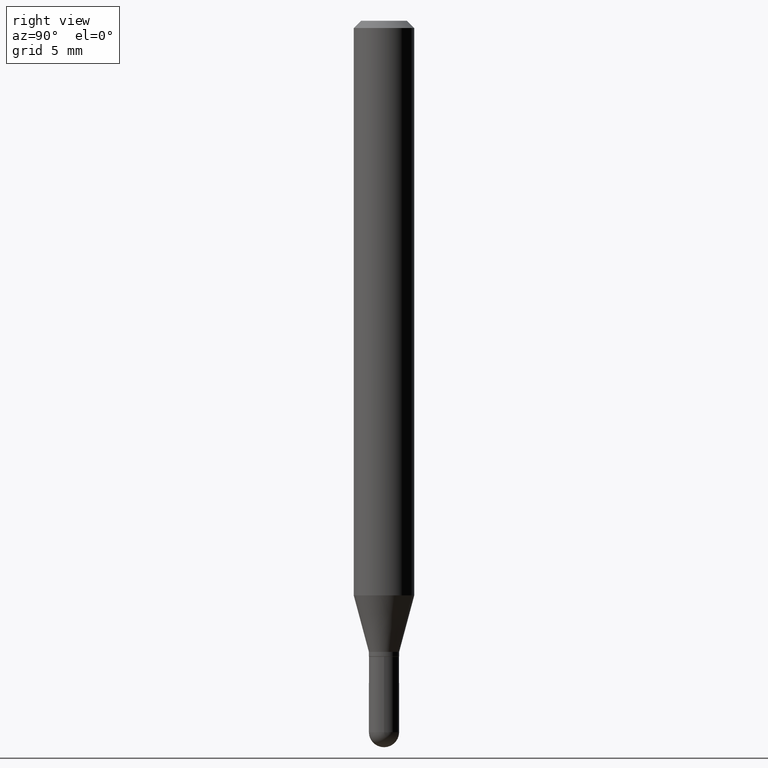
[diagram: clean part render]
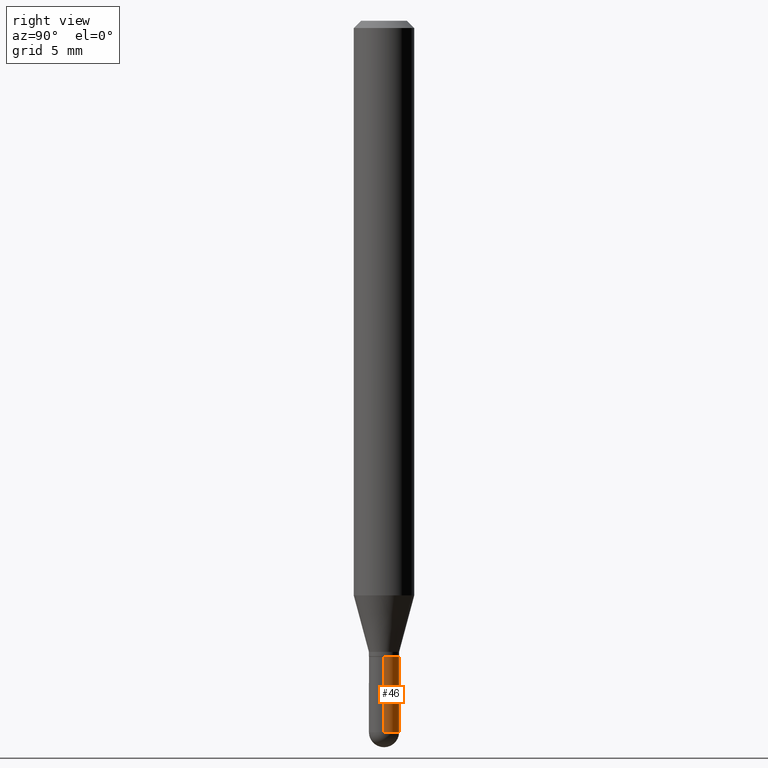
[diagram: same view with one face highlighted and labeled with its STEP entity id]
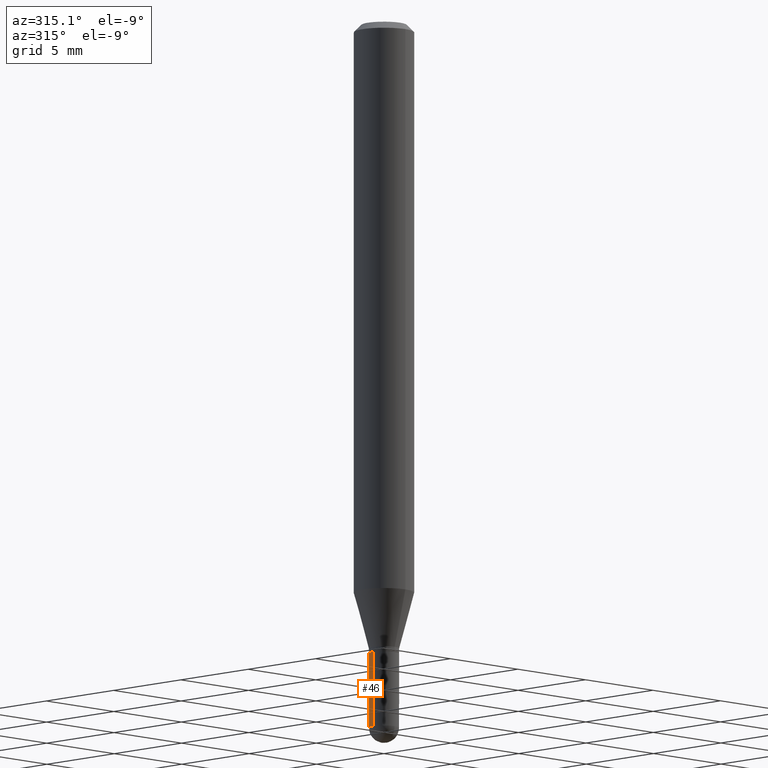
[diagram: same view with one face highlighted and labeled with its STEP entity id]
A machine part, right view. The second image highlights one B-rep face of the part: STEP entity #46.
A second angle (auxiliary view) of the same face is appended — the face is thin or edge-on in the first view.
In plain terms, the highlighted cylindrical surface (edge-blend (fillet) strip) has radius 0.7937 mm, axis along (-0, 0, 1).
Its self-contained STEP definition (entity closure, byte-faithful):
#5 = ORIENTED_EDGE ( 'NONE', *, *, #396, .F. ) ;
#27 = AXIS2_PLACEMENT_3D ( 'NONE', #433, #273, #239 ) ;
#28 = DIRECTION ( 'NONE',  ( -2.445468806185136597E-29, 3.491481338843145583E-15, 1.000000000000000000 ) ) ;
#42 = FACE_OUTER_BOUND ( 'NONE', #491, .T. ) ;
#45 = ORIENTED_EDGE ( 'NONE', *, *, #298, .F. ) ;
#46 = ADVANCED_FACE ( 'NONE', ( #42 ), #309, .T. ) ;
#55 = EDGE_CURVE ( 'NONE', #347, #245, #131, .T. ) ;
#58 = CARTESIAN_POINT ( 'NONE',  ( 3.591782309084418816E-29, -5.128113216425869865E-15, -1.468750000000000000 ) ) ;
#59 = VECTOR ( 'NONE', #120, 39.37007874015748143 ) ;
#63 = DIRECTION ( 'NONE',  ( 1.000000000000000000, -6.982962677686266711E-15, 4.876176775795935793E-29 ) ) ;
#96 = DIRECTION ( 'NONE',  ( -2.445468806185136877E-29, 3.491481338843145188E-15, 1.000000000000000000 ) ) ;
#120 = DIRECTION ( 'NONE',  ( -2.445468806185136877E-29, 3.491481338843145188E-15, 1.000000000000000000 ) ) ;
#131 = CIRCLE ( 'NONE', #379, 0.03125000000000000694 ) ;
#132 = LINE ( 'NONE', #445, #398 ) ;
#135 = CARTESIAN_POINT ( 'NONE',  ( 0.03125000000000000694, -5.074431690841155672E-15, -1.468750000000000000 ) ) ;
#144 = ORIENTED_EDGE ( 'NONE', *, *, #224, .T. ) ;
#166 = CARTESIAN_POINT ( 'NONE',  ( -0.03125000000000000000, 2.220446049250313081E-16, -1.537167215704658057E-30 ) ) ;
#184 = AXIS2_PLACEMENT_3D ( 'NONE', #263, #28, #63 ) ;
#197 = DIRECTION ( 'NONE',  ( 1.000000000000000000, -6.982962677686261189E-15, 0.000000000000000000 ) ) ;
#205 = CARTESIAN_POINT ( 'NONE',  ( 3.591782309084418816E-29, -5.128113216425869865E-15, -1.468750000000000000 ) ) ;
#219 = ORIENTED_EDGE ( 'NONE', *, *, #391, .T. ) ;
#224 = EDGE_CURVE ( 'NONE', #287, #347, #332, .T. ) ;
#239 = DIRECTION ( 'NONE',  ( 1.000000000000000000, -6.982962677686262766E-15, 0.000000000000000000 ) ) ;
#245 = VERTEX_POINT ( 'NONE', #355 ) ;
#249 = CIRCLE ( 'NONE', #27, 0.03125000000000000000 ) ;
#263 = CARTESIAN_POINT ( 'NONE',  ( 0.000000000000000000, 0.000000000000000000, 0.000000000000000000 ) ) ;
#270 = AXIS2_PLACEMENT_3D ( 'NONE', #58, #375, #278 ) ;
#273 = DIRECTION ( 'NONE',  ( -2.445468806185136597E-29, 3.491481338843145583E-15, 1.000000000000000000 ) ) ;
#278 = DIRECTION ( 'NONE',  ( 1.000000000000000000, -6.982962677686261189E-15, 0.000000000000000000 ) ) ;
#287 = VERTEX_POINT ( 'NONE', #135 ) ;
#298 = EDGE_CURVE ( 'NONE', #287, #412, #132, .T. ) ;
#309 = CYLINDRICAL_SURFACE ( 'NONE', #184, 0.03125000000000000000 ) ;
#332 = CIRCLE ( 'NONE', #270, 0.03125000000000000694 ) ;
#345 = CARTESIAN_POINT ( 'NONE',  ( 0.03125000000000000000, -4.802532581578746433E-15, -1.313000000000000167 ) ) ;
#347 = VERTEX_POINT ( 'NONE', #454 ) ;
#355 = CARTESIAN_POINT ( 'NONE',  ( -0.03125000000000000694, -4.634169502238429318E-15, -1.468750000000000000 ) ) ;
#370 = ORIENTED_EDGE ( 'NONE', *, *, #55, .T. ) ;
#375 = DIRECTION ( 'NONE',  ( -2.445468806185136597E-29, 3.491481338843145583E-15, 1.000000000000000000 ) ) ;
#379 = AXIS2_PLACEMENT_3D ( 'NONE', #205, #470, #197 ) ;
#390 = CARTESIAN_POINT ( 'NONE',  ( -0.03125000000000000000, -4.634169502238429318E-15, -1.313000000000000167 ) ) ;
#391 = EDGE_CURVE ( 'NONE', #245, #400, #468, .T. ) ;
#396 = EDGE_CURVE ( 'NONE', #412, #400, #249, .T. ) ;
#398 = VECTOR ( 'NONE', #96, 39.37007874015748143 ) ;
#400 = VERTEX_POINT ( 'NONE', #390 ) ;
#412 = VERTEX_POINT ( 'NONE', #345 ) ;
#433 = CARTESIAN_POINT ( 'NONE',  ( 3.210900542521084585E-29, -4.584314997901050598E-15, -1.313000000000000167 ) ) ;
#445 = CARTESIAN_POINT ( 'NONE',  ( 0.03125000000000000000, -2.182175836776958347E-16, 1.523805242436229935E-30 ) ) ;
#454 = CARTESIAN_POINT ( 'NONE',  ( 2.220446049250678915E-16, 0.03124999999999497277, -1.468750000000000000 ) ) ;
#468 = LINE ( 'NONE', #166, #59 ) ;
#470 = DIRECTION ( 'NONE',  ( -2.445468806185136597E-29, 3.491481338843145583E-15, 1.000000000000000000 ) ) ;
#491 = EDGE_LOOP ( 'NONE', ( #370, #219, #5, #45, #144 ) ) ;